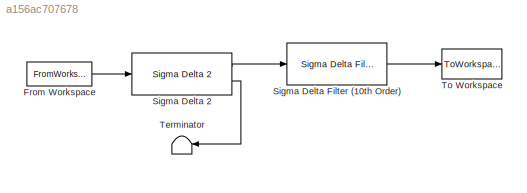
MODEL slx_a156ac707678
KIND model
CONFIG AbsTol = auto
CONFIG EnableMultiTasking = off
CONFIG FixedStep = auto
CONFIG MaxStep = auto
CONFIG MinStep = auto
CONFIG RelTol = 1e-3
CONFIG SampleTimeConstraint = Unconstrained
CONFIG Solver = VariableStepAuto
CONFIG SolverName = VariableStepAuto
CONFIG StartTime = 0.0
CONFIG StopTime = t_stop
BLOCK [FromWorkspace] From Workspace
  SampleTime = ts
  VariableName = [t;in]'
  ZeroCross = on
BLOCK [Reference] Sigma Delta 2  REF=Bitstream_Library/Sigma Delta 2
  Ports = [1, 2]
  SourceBlock = Bitstream_Library/Sigma Delta 2
  SourceType = SubSystem
BLOCK [Reference] Sigma Delta Filter (10th Order)  REF=Bitstream_Library/Sigma Delta Filter (10th Order)
  Ports = [1, 1]
  SourceBlock = Bitstream_Library/Sigma Delta Filter (10th Order)
  SourceType = SubSystem
BLOCK [Terminator] Terminator
BLOCK [ToWorkspace] To Workspace
  FixptAsFi = on
  MaxDataPoints = inf
  Ports = [1]
  SampleTime = -1
  Save2DSignal = 3-D array (concatenate along third dimension)
  VariableName = filter_output
LINE From Workspace:1 -> Sigma Delta 2:1
LINE Sigma Delta 2:1 -> Sigma Delta Filter (10th Order):1
LINE Sigma Delta 2:2 -> Terminator:1
LINE Sigma Delta Filter (10th Order):1 -> To Workspace:1
